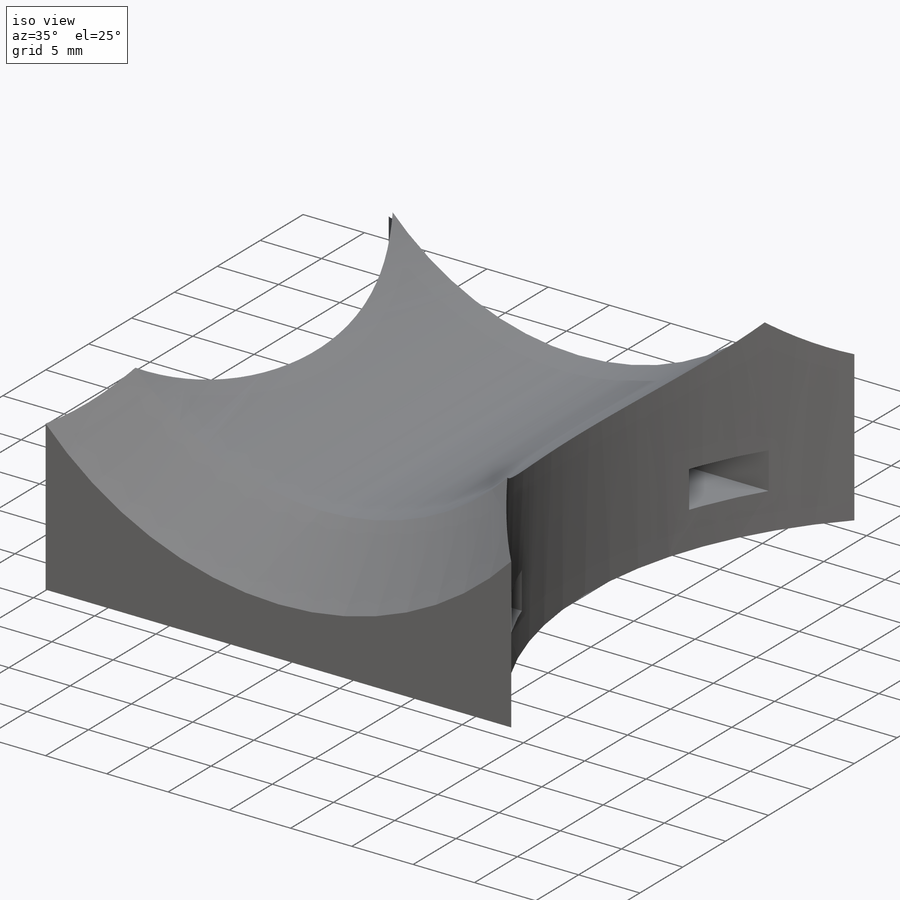
[diagram: iso view]
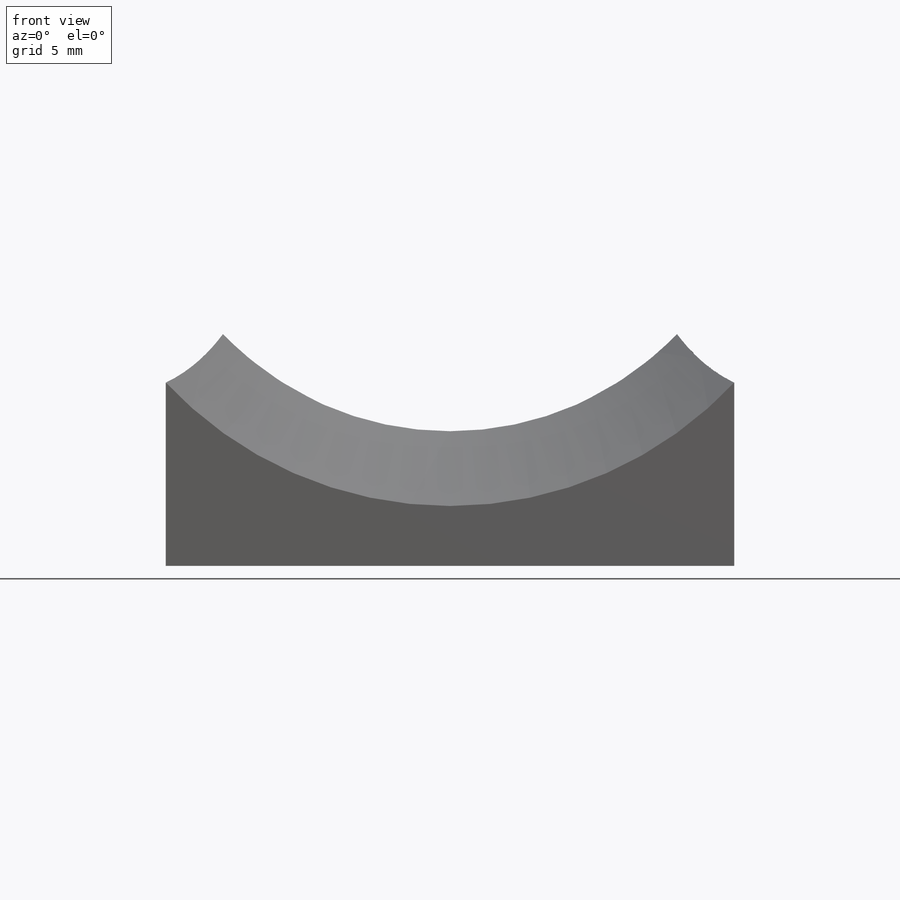
[diagram: front view]
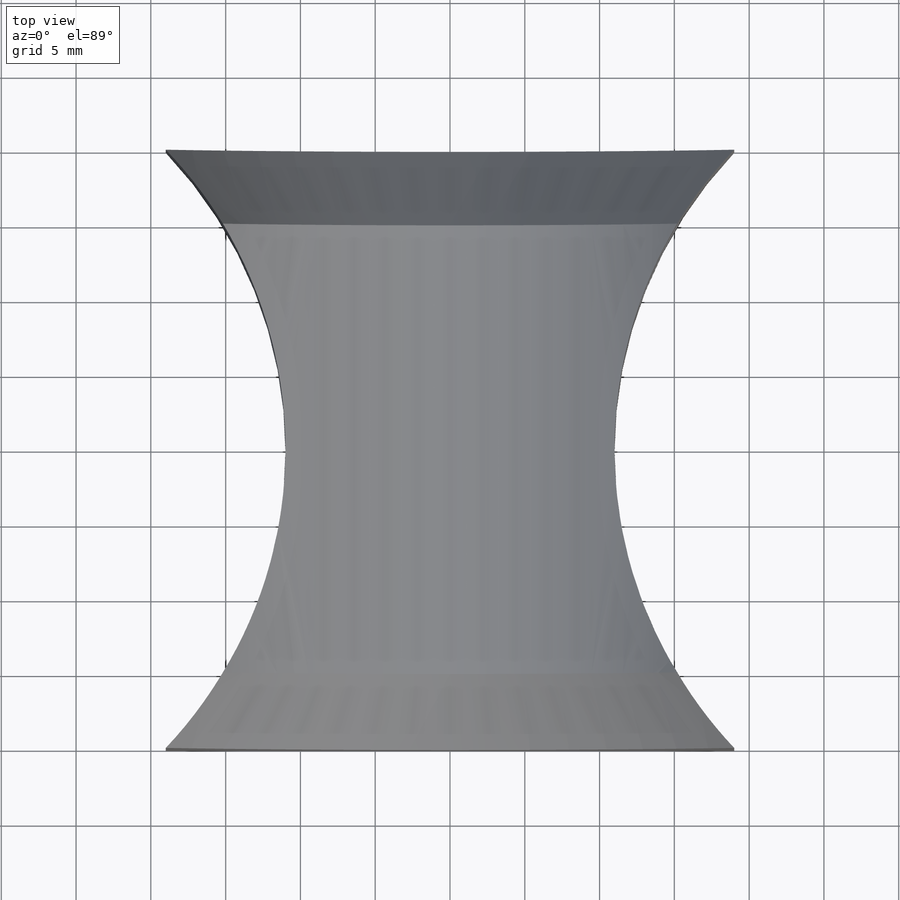
[diagram: top view]
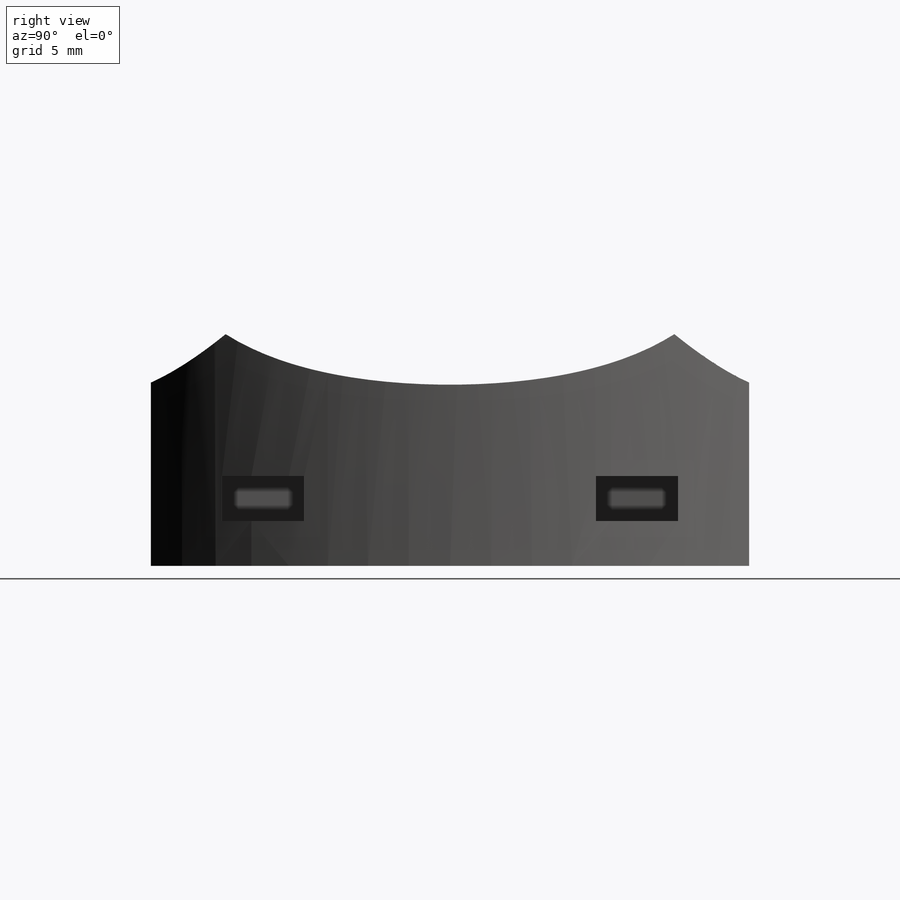
[diagram: right view]
SOLIDWORKS PART (.sldprt)
format: sldprt  version: not decoded by parser v0  size: 207,872 bytes
history: native  units: mm
features: sketch x5, cut_extrude x3, material x1, extrude x1, chamfer x1 (+11 scaffold rows collapsed)
feature tree (22):
  scaffold x11  (default folders/planes/origin — collapsed)
  material  "ABS"
  sketch  "Sketch1"  dims[D2=40.0mm D3=42.0mm D1=30.0mm]
  sketch  "Sketch3"  dims[c1.D1=50.0mm c1.D2=70.0mm c2.D1=30.0mm c2.D2=60.0mm c3.D1=55.0mm c3.D3=30.0mm]
  sketch  "Sketch4"  dims[D1=58.0mm D2=80.0mm]
  extrude  "Boss-Extrude1"  Depth=40mm
  cut_extrude  "Cut-Extrude1"  [1 undecoded]
  chamfer  "Chamfer1"  Distance=5mm Angle=45deg
  sketch  "Sketch5"  dims[D1=5.5mm D2=3.0mm D3=3.0mm D4=25.0mm]
  cut_extrude  "Cut-Extrude2"  Depth=3mm
  sketch  "Sketch7"  dims[D1=3.6mm D2=25.0mm]
  cut_extrude  "Cut-Extrude3"  Depth=6mm
decode coverage: 9 of 10 modeling features carry decoded parameters
note: 1 parameter value undecoded
note: suppression state not decoded; provenance and decode notes live in map.json
